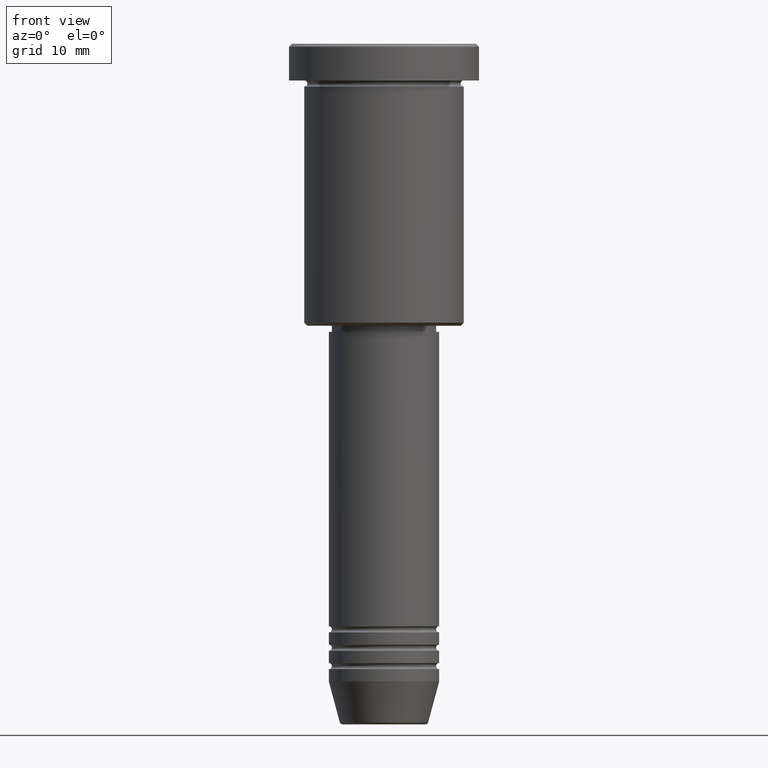
[diagram: clean part render]
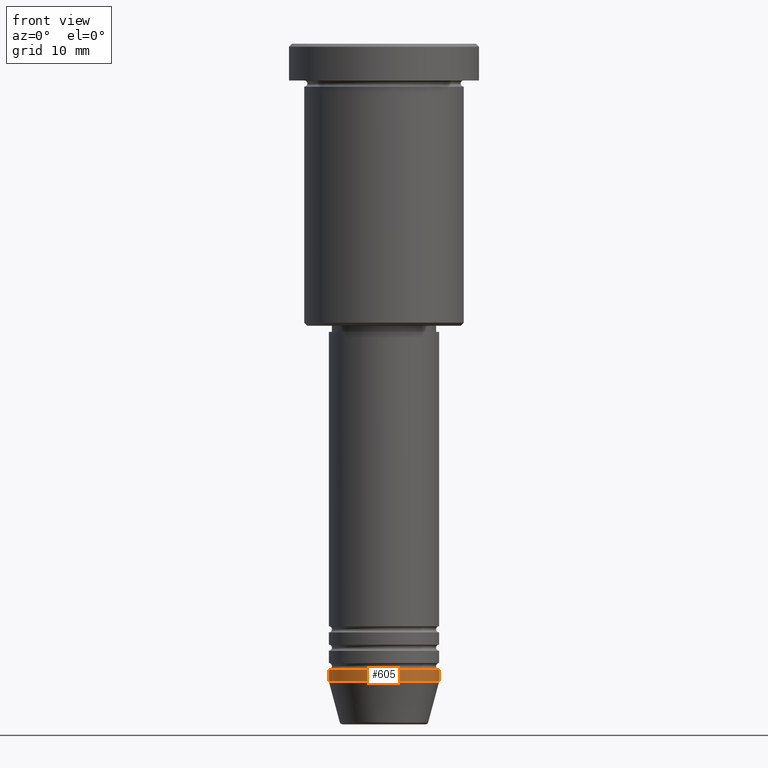
[diagram: same view with one face highlighted and labeled with its STEP entity id]
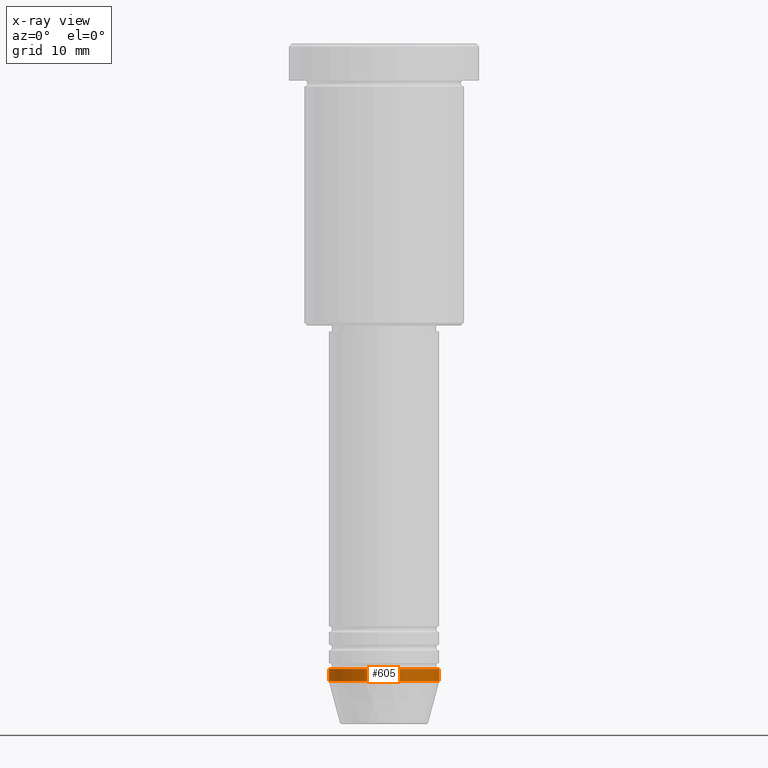
[diagram: x-ray of the same camera — body ghosted, the highlighted face saturated]
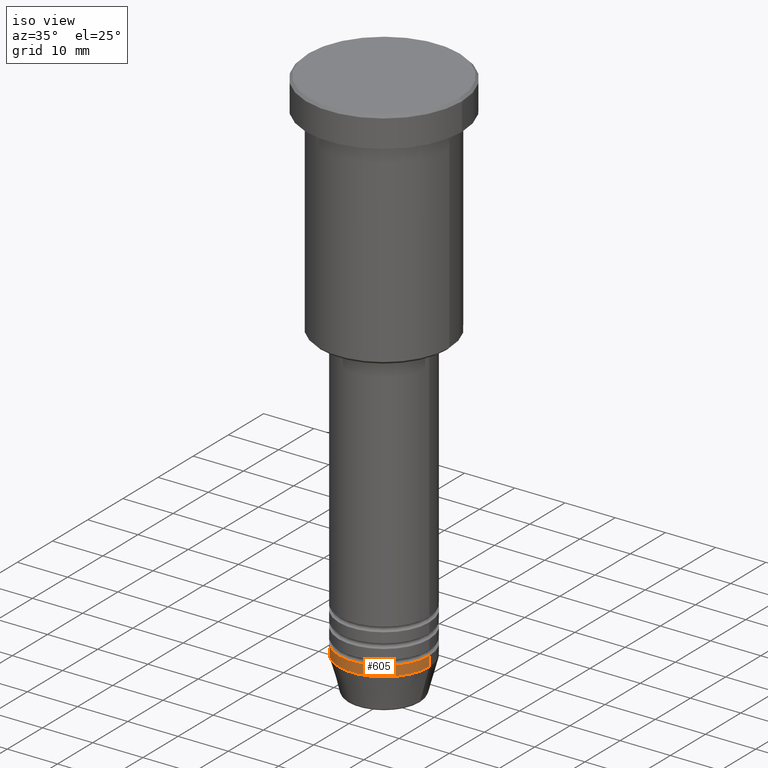
[diagram: same view with one face highlighted and labeled with its STEP entity id]
A machine part, front view. The second image highlights one B-rep face of the part: STEP entity #605.
The next image is the same camera in x-ray: the body ghosted, the highlighted face saturated — about 0% of this face is hidden behind the body in this view.
A second angle (iso view) of the same face is appended — the face is thin or edge-on in the first view.
In plain terms, the highlighted cylindrical surface (partial cylindrical patch) has radius 9 mm, axis along (-0, -0, 1).
Its self-contained STEP definition (entity closure, byte-faithful):
#5 = DIRECTION ( 'NONE',  ( -0.000000000000000000, -0.000000000000000000, 1.000000000000000000 ) ) ;
#40 = CARTESIAN_POINT ( 'NONE',  ( -9.000000000000000000, 1.102182119232617714E-15, -104.0000000000000142 ) ) ;
#86 = CARTESIAN_POINT ( 'NONE',  ( 9.000000000000000000, 0.000000000000000000, -102.0000000000000142 ) ) ;
#95 = EDGE_CURVE ( 'NONE', #659, #994, #998, .T. ) ;
#166 = VECTOR ( 'NONE', #212, 1000.000000000000000 ) ;
#212 = DIRECTION ( 'NONE',  ( -0.000000000000000000, -0.000000000000000000, 1.000000000000000000 ) ) ;
#240 = AXIS2_PLACEMENT_3D ( 'NONE', #586, #5, #491 ) ;
#335 = EDGE_LOOP ( 'NONE', ( #731, #1108, #703, #533 ) ) ;
#380 = VERTEX_POINT ( 'NONE', #86 ) ;
#402 = VECTOR ( 'NONE', #1053, 1000.000000000000000 ) ;
#455 = AXIS2_PLACEMENT_3D ( 'NONE', #824, #528, #1180 ) ;
#491 = DIRECTION ( 'NONE',  ( 1.000000000000000000, 0.000000000000000000, 0.000000000000000000 ) ) ;
#503 = EDGE_CURVE ( 'NONE', #994, #380, #939, .T. ) ;
#528 = DIRECTION ( 'NONE',  ( -0.000000000000000000, -0.000000000000000000, 1.000000000000000000 ) ) ;
#533 = ORIENTED_EDGE ( 'NONE', *, *, #926, .F. ) ;
#576 = DIRECTION ( 'NONE',  ( -0.000000000000000000, -0.000000000000000000, 1.000000000000000000 ) ) ;
#586 = CARTESIAN_POINT ( 'NONE',  ( 0.000000000000000000, 0.000000000000000000, 0.000000000000000000 ) ) ;
#595 = CIRCLE ( 'NONE', #455, 9.000000000000000000 ) ;
#605 = ADVANCED_FACE ( 'NONE', ( #1101 ), #676, .T. ) ;
#618 = CARTESIAN_POINT ( 'NONE',  ( -9.000000000000000000, 1.102182119232617714E-15, 0.000000000000000000 ) ) ;
#659 = VERTEX_POINT ( 'NONE', #40 ) ;
#675 = CARTESIAN_POINT ( 'NONE',  ( 9.000000000000000000, 0.000000000000000000, -104.0000000000000142 ) ) ;
#676 = CYLINDRICAL_SURFACE ( 'NONE', #240, 9.000000000000000000 ) ;
#695 = VERTEX_POINT ( 'NONE', #796 ) ;
#703 = ORIENTED_EDGE ( 'NONE', *, *, #503, .T. ) ;
#728 = EDGE_CURVE ( 'NONE', #659, #695, #889, .T. ) ;
#731 = ORIENTED_EDGE ( 'NONE', *, *, #728, .F. ) ;
#796 = CARTESIAN_POINT ( 'NONE',  ( -9.000000000000000000, 1.102182119232617714E-15, -102.0000000000000142 ) ) ;
#824 = CARTESIAN_POINT ( 'NONE',  ( 0.000000000000000000, 0.000000000000000000, -102.0000000000000142 ) ) ;
#853 = CARTESIAN_POINT ( 'NONE',  ( 0.000000000000000000, 0.000000000000000000, -104.0000000000000142 ) ) ;
#889 = LINE ( 'NONE', #618, #402 ) ;
#908 = AXIS2_PLACEMENT_3D ( 'NONE', #853, #576, #1012 ) ;
#926 = EDGE_CURVE ( 'NONE', #695, #380, #595, .T. ) ;
#939 = LINE ( 'NONE', #1110, #166 ) ;
#994 = VERTEX_POINT ( 'NONE', #675 ) ;
#998 = CIRCLE ( 'NONE', #908, 9.000000000000000000 ) ;
#1012 = DIRECTION ( 'NONE',  ( 1.000000000000000000, 0.000000000000000000, 0.000000000000000000 ) ) ;
#1053 = DIRECTION ( 'NONE',  ( -0.000000000000000000, -0.000000000000000000, 1.000000000000000000 ) ) ;
#1101 = FACE_OUTER_BOUND ( 'NONE', #335, .T. ) ;
#1108 = ORIENTED_EDGE ( 'NONE', *, *, #95, .T. ) ;
#1110 = CARTESIAN_POINT ( 'NONE',  ( 9.000000000000000000, 0.000000000000000000, 0.000000000000000000 ) ) ;
#1180 = DIRECTION ( 'NONE',  ( 1.000000000000000000, 0.000000000000000000, 0.000000000000000000 ) ) ;